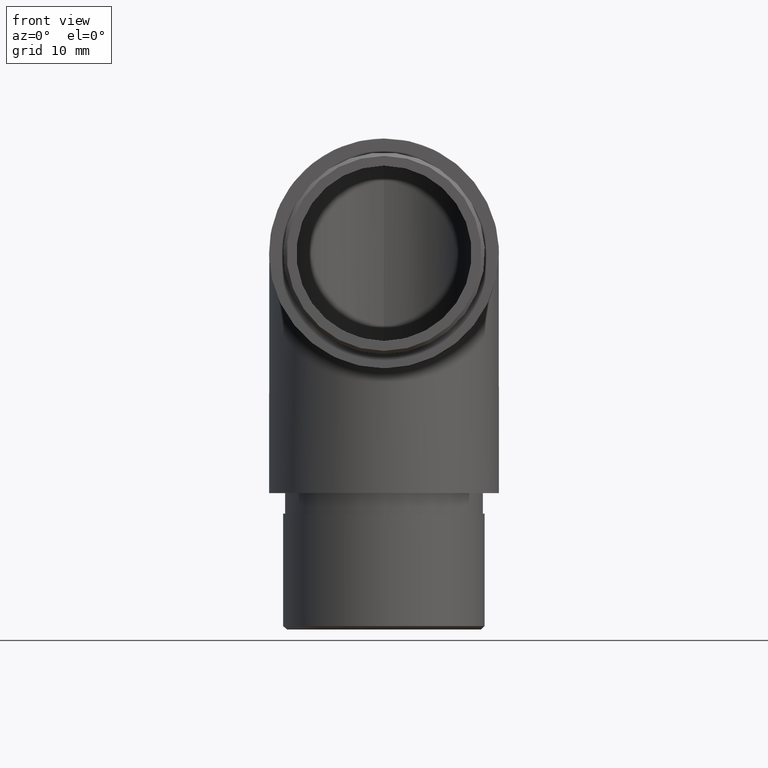
[diagram: clean part render]
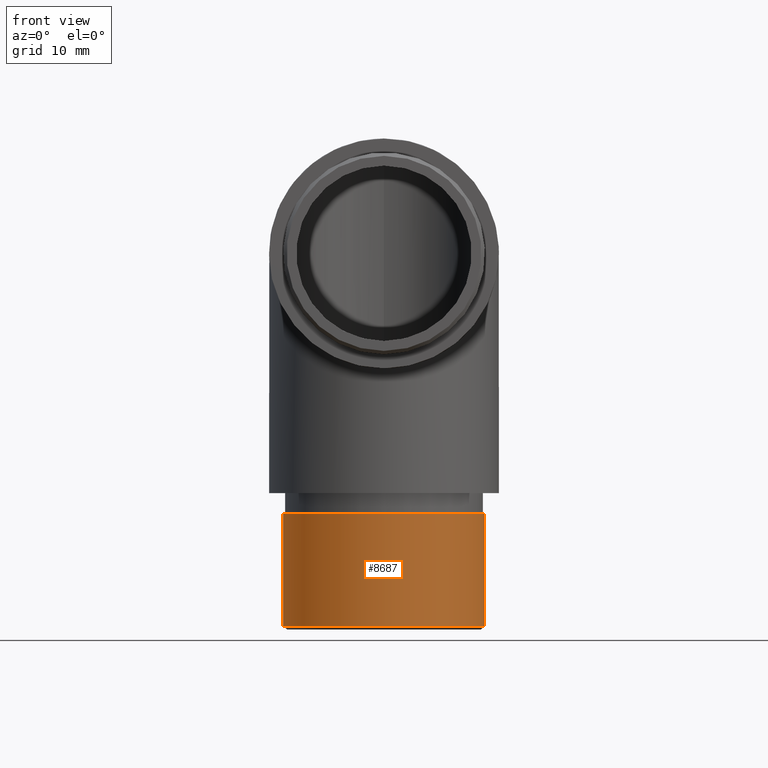
[diagram: same view with one face highlighted and labeled with its STEP entity id]
A machine part, front view. The second image highlights one B-rep face of the part: STEP entity #8687.
In plain terms, the highlighted cylindrical surface (bore or boss wall) has radius 14.8 mm, axis along (-0, 0, 1).
Its self-contained STEP definition (entity closure, byte-faithful):
#224 = FACE_OUTER_BOUND ( 'NONE', #1767, .T. ) ;
#335 = CYLINDRICAL_SURFACE ( 'NONE', #3539, 14.80000000000000100 ) ;
#813 = DIRECTION ( 'NONE',  ( 0.0000000000000000000, 0.0000000000000000000, 1.000000000000000000 ) ) ;
#1047 = AXIS2_PLACEMENT_3D ( 'NONE', #9046, #813, #3998 ) ;
#1099 = CIRCLE ( 'NONE', #1047, 14.80000000000000100 ) ;
#1501 = CARTESIAN_POINT ( 'NONE',  ( 0.0000000000000000000, 35.14999999999981400, -55.14999999999999100 ) ) ;
#1731 = FACE_OUTER_BOUND ( 'NONE', #3907, .T. ) ;
#1767 = EDGE_LOOP ( 'NONE', ( #8473 ) ) ;
#2103 = VERTEX_POINT ( 'NONE', #4102 ) ;
#2320 = DIRECTION ( 'NONE',  ( 0.0000000000000000000, -3.386180225106727400E-015, -1.000000000000000000 ) ) ;
#2906 = VERTEX_POINT ( 'NONE', #7402 ) ;
#3539 = AXIS2_PLACEMENT_3D ( 'NONE', #1501, #4226, #9981 ) ;
#3812 = AXIS2_PLACEMENT_3D ( 'NONE', #8977, #2320, #5603 ) ;
#3907 = EDGE_LOOP ( 'NONE', ( #7243 ) ) ;
#3998 = DIRECTION ( 'NONE',  ( -1.000000000000000000, 0.0000000000000000000, 0.0000000000000000000 ) ) ;
#4102 = CARTESIAN_POINT ( 'NONE',  ( 0.0000000000000000000, 49.94999999999986800, -38.15000000000004100 ) ) ;
#4226 = DIRECTION ( 'NONE',  ( -0.0000000000000000000, 3.386180225106727800E-015, 1.000000000000000000 ) ) ;
#5603 = DIRECTION ( 'NONE',  ( 0.0000000000000000000, 1.000000000000000000, -3.281909278875040400E-015 ) ) ;
#6791 = EDGE_CURVE ( 'NONE', #2103, #2103, #7338, .T. ) ;
#7243 = ORIENTED_EDGE ( 'NONE', *, *, #10669, .T. ) ;
#7338 = CIRCLE ( 'NONE', #3812, 14.80000000000000100 ) ;
#7402 = CARTESIAN_POINT ( 'NONE',  ( -14.80000000000000100, 35.14999999999981400, -54.64999999999997000 ) ) ;
#8473 = ORIENTED_EDGE ( 'NONE', *, *, #6791, .T. ) ;
#8687 = ADVANCED_FACE ( 'NONE', ( #1731, #224 ), #335, .T. ) ;
#8977 = CARTESIAN_POINT ( 'NONE',  ( 0.0000000000000000000, 35.14999999999987100, -38.14999999999999100 ) ) ;
#9046 = CARTESIAN_POINT ( 'NONE',  ( 0.0000000000000000000, 35.14999999999981400, -54.64999999999997000 ) ) ;
#9981 = DIRECTION ( 'NONE',  ( 0.0000000000000000000, -1.000000000000000000, 3.281909278875040400E-015 ) ) ;
#10669 = EDGE_CURVE ( 'NONE', #2906, #2906, #1099, .T. ) ;